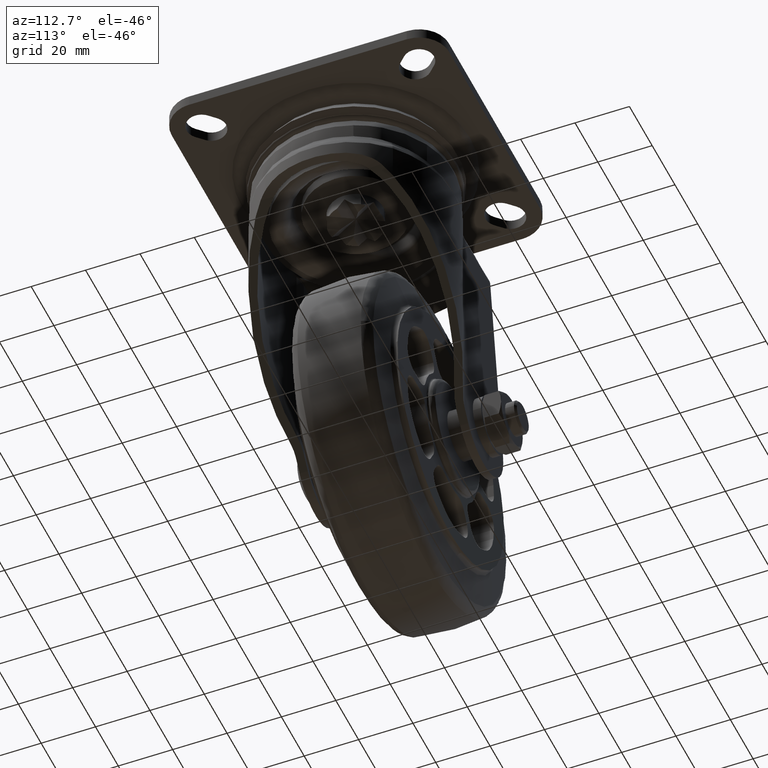
[diagram: clean part render]
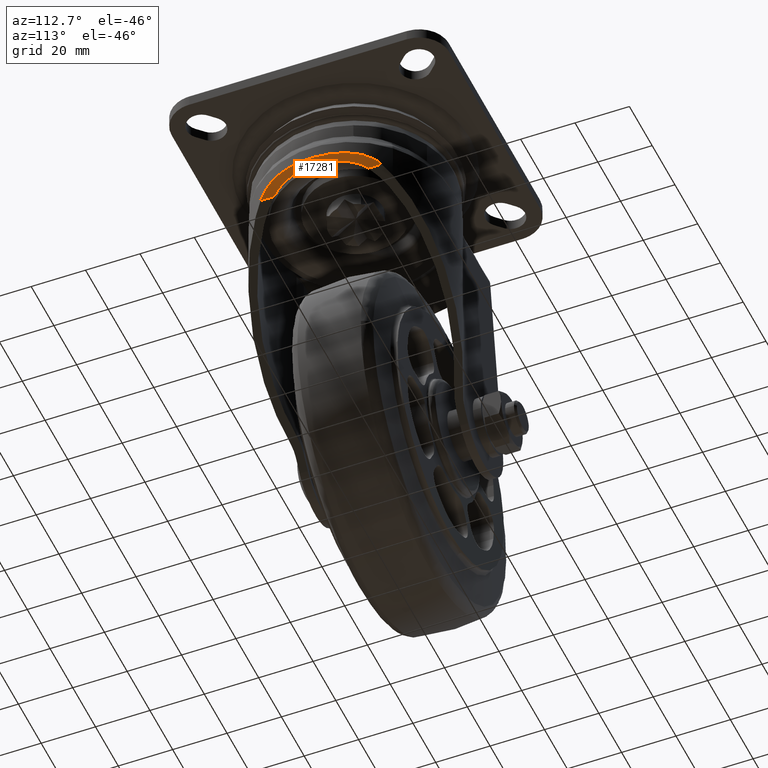
[diagram: same view with one face highlighted and labeled with its STEP entity id]
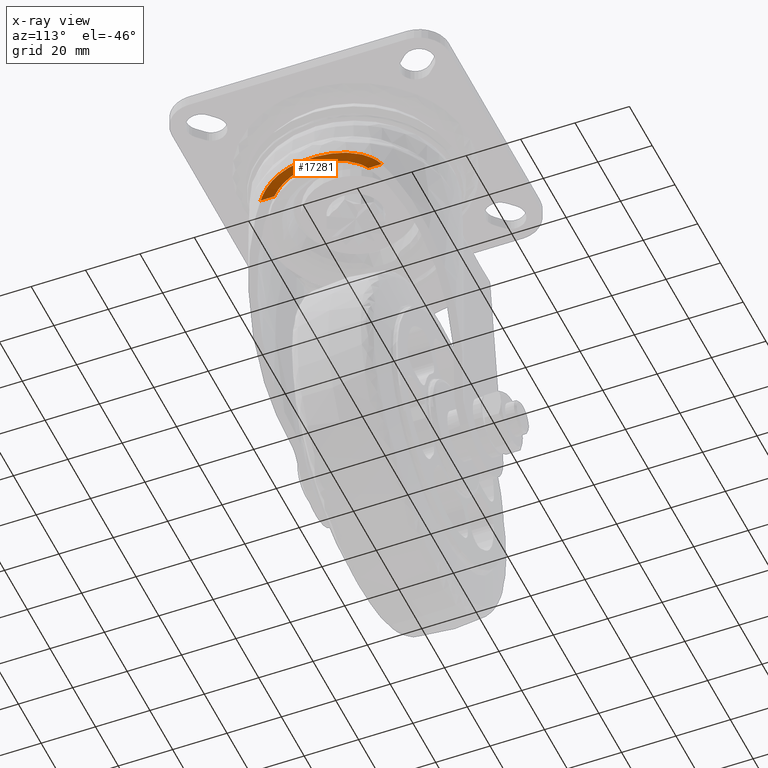
[diagram: x-ray of the same camera — body ghosted, the highlighted face saturated]
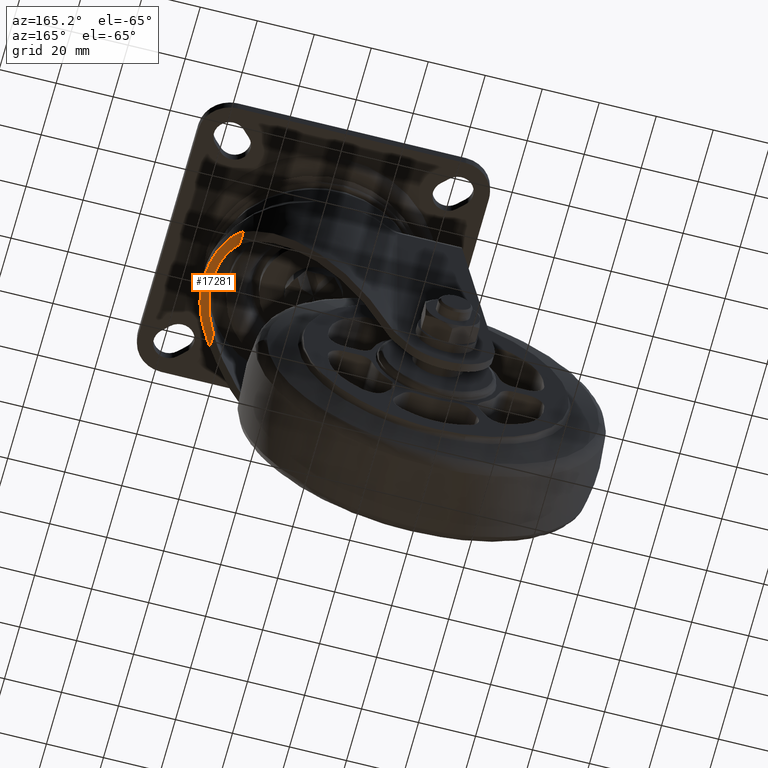
[diagram: same view with one face highlighted and labeled with its STEP entity id]
A machine part, auxiliary view. The second image highlights one B-rep face of the part: STEP entity #17281.
The next image is the same camera in x-ray: the body ghosted, the highlighted face saturated — about 0% of this face is hidden behind the body in this view.
A second angle (auxiliary view) of the same face is appended — the face is thin or edge-on in the first view.
In plain terms, the highlighted face is a freeform B-spline surface patch.
Its self-contained STEP definition (entity closure, byte-faithful):
#16852=CARTESIAN_POINT('',(68.505881367040004,-22.269559928102900,67.202841009678707));
#16853=VERTEX_POINT('',#16852);
#16867=CARTESIAN_POINT('',(68.505881367040004,22.269559928102900,67.202841009678707));
#16868=VERTEX_POINT('',#16867);
#16869=CARTESIAN_POINT('',(68.505881367040004,-22.269559928102900,67.202841009678707));
#16870=CARTESIAN_POINT('',(68.759907591997660,-21.968701775384250,67.559361252768284));
#16871=CARTESIAN_POINT('',(69.022994737515745,-21.646618713008941,67.879565664221360));
#16872=CARTESIAN_POINT('',(69.558347061791949,-20.964155908067479,68.461478641176555));
#16873=CARTESIAN_POINT('',(69.830664930562278,-20.603729541076270,68.723075291074579));
#16874=CARTESIAN_POINT('',(70.241145340688192,-20.035992961723409,69.078483249169466));
#16875=CARTESIAN_POINT('',(70.378319323730153,-19.842220870852699,69.190761648237569));
#16876=CARTESIAN_POINT('',(70.584074737821467,-19.544913189630218,69.350590183883185));
#16877=CARTESIAN_POINT('',(70.652735273973690,-19.444589650202879,69.402489324687195));
#16878=CARTESIAN_POINT('',(70.789618744726269,-19.242269850977269,69.503268530776637));
#16879=CARTESIAN_POINT('',(70.857718929269808,-19.140457868975609,69.552062035059407));
#16880=CARTESIAN_POINT('',(71.196398557594435,-18.628209705873200,69.788519551231914));
#16881=CARTESIAN_POINT('',(71.461486828841132,-18.208229862249610,69.953779633907587));
#16882=CARTESIAN_POINT('',(71.977542649097558,-17.349372079188001,70.246241713422364));
#16883=CARTESIAN_POINT('',(72.228519667358498,-16.910487432655511,70.373402084124535));
#16884=CARTESIAN_POINT('',(72.714479818530805,-16.014861246431050,70.596909611678228));
#16885=CARTESIAN_POINT('',(72.949468309442679,-15.558116312020640,70.693234602335963));
#16886=CARTESIAN_POINT('',(73.288770570868621,-14.860194671289429,70.818952128222833));
#16887=CARTESIAN_POINT('',(73.399676422495475,-14.625418353225820,70.857720064912940));
#16888=CARTESIAN_POINT('',(73.562606899497268,-14.270110682234190,70.911638586442805));
#16889=CARTESIAN_POINT('',(73.616365921129614,-14.151102724386730,70.928910982103616));
#16890=CARTESIAN_POINT('',(73.722396318904259,-13.912785418399601,70.962019852598928));
#16891=CARTESIAN_POINT('',(73.774707926439845,-13.793389934735430,70.977870087904805));
#16892=CARTESIAN_POINT('',(74.032754580479065,-13.195241466471970,71.053826034576446));
#16893=CARTESIAN_POINT('',(74.227958628718469,-12.712978522632550,71.104092068220695));
#16894=CARTESIAN_POINT('',(74.780050571092474,-11.255380081730690,71.230868219259008));
#16895=CARTESIAN_POINT('',(75.103467778110272,-10.269265623885660,71.283687340950280));
#16896=CARTESIAN_POINT('',(75.660890769120471,-8.269678246329145,71.354935153449603));
#16897=CARTESIAN_POINT('',(75.894906612761687,-7.256202225771725,71.373243355559794));
#16898=CARTESIAN_POINT('',(76.177524106177231,-5.715796852609624,71.389285373089791));
#16899=CARTESIAN_POINT('',(76.260314821005949,-5.198955985461343,71.392665951660618));
#16900=CARTESIAN_POINT('',(76.367067516137951,-4.418610614974097,71.396068239638936));
#16901=CARTESIAN_POINT('',(76.399662687451354,-4.158223056561011,71.396918095979373));
#16902=CARTESIAN_POINT('',(76.458801076856361,-3.637870716937992,71.398224172976825));
#16903=CARTESIAN_POINT('',(76.485365368373010,-3.377753287390345,71.398681022673841));
#16904=CARTESIAN_POINT('',(76.603286724890253,-2.077457126454874,71.400344815212165));
#16905=CARTESIAN_POINT('',(76.650036436839216,-1.038149287956250,71.400008999999983));
#16906=CARTESIAN_POINT('',(76.650021561389764,1.038643790761353,71.400008999999997));
#16907=CARTESIAN_POINT('',(76.603254834264490,2.076128985486941,71.400340102237891));
#16908=CARTESIAN_POINT('',(76.462476540009533,3.630977838746897,71.398360192521338));
#16909=CARTESIAN_POINT('',(76.403761302896697,4.149030571023375,71.397226084397516));
#16910=CARTESIAN_POINT('',(76.297778134492589,4.925759163387212,71.393865544425196));
#16911=CARTESIAN_POINT('',(76.259464179153966,5.184610250169921,71.392464663287839));
#16912=CARTESIAN_POINT('',(76.176811401549671,5.702194345887461,71.388891628531226));
#16913=CARTESIAN_POINT('',(76.132415460381708,5.961223318595666,71.386715996261898));
#16914=CARTESIAN_POINT('',(75.896128721642000,7.251251360483425,71.373347501204762));
#16915=CARTESIAN_POINT('',(75.661356749193274,8.267977138826083,71.354992690102662));
#16916=CARTESIAN_POINT('',(75.103143279249196,10.270459202594401,71.283647887406872));
#16917=CARTESIAN_POINT('',(74.779686514877639,11.256217628775300,71.230764142887807));
#16918=CARTESIAN_POINT('',(74.228914653703612,12.710516161024300,71.104321816728699));
#16919=CARTESIAN_POINT('',(74.034381993983146,13.191217113843891,71.054243858623764));
#16920=CARTESIAN_POINT('',(73.623479782603141,14.144183464024239,70.933416564990850));
#16921=CARTESIAN_POINT('',(73.407109363140336,14.616449653738441,70.862683339170871));
#16922=CARTESIAN_POINT('',(72.952530281923941,15.552142253014690,70.694482446632605));
#16923=CARTESIAN_POINT('',(72.716455702302639,16.011149509256139,70.597783347702659));
#16924=CARTESIAN_POINT('',(72.228693535089945,16.910236862012919,70.373516928694528));
#16925=CARTESIAN_POINT('',(71.976964256279317,17.350394982256759,70.245957120349033));
#16926=CARTESIAN_POINT('',(71.459860398939767,18.210876128499351,69.952814512782339));
#16927=CARTESIAN_POINT('',(71.194476267192101,18.631205868550840,69.787270708503442));
#16928=CARTESIAN_POINT('',(70.855820047385421,19.143307328640411,69.550712560132212));
#16929=CARTESIAN_POINT('',(70.787744243197011,19.245060762482840,69.501912086640502));
#16930=CARTESIAN_POINT('',(70.650951780017337,19.447204866485620,69.401151962342610));
#16931=CARTESIAN_POINT('',(70.582351078707774,19.547421561112369,69.349274211484797));
#16932=CARTESIAN_POINT('',(70.376759235006645,19.844438957695122,69.189503045947845));
#16933=CARTESIAN_POINT('',(70.239696063223349,20.038023663175871,69.077270534632191));
#16934=CARTESIAN_POINT('',(69.829551280801184,20.605217043083560,68.722026195266565));
#16935=CARTESIAN_POINT('',(69.557461565971650,20.965306446177419,68.460572930760605));
#16936=CARTESIAN_POINT('',(69.022560588703129,21.647150393543210,67.879036817602397));
#16937=CARTESIAN_POINT('',(68.759696829755470,21.968951393465289,67.559065452577471));
#16938=CARTESIAN_POINT('',(68.505881367039905,22.269559928102851,67.202841009678608));
#16939=B_SPLINE_CURVE_WITH_KNOTS('',3,(#16869,#16870,#16871,#16872,#16873,#16874,#16875,#16876,#16877,#16878,#16879,#16880,#16881,#16882,#16883,#16884,#16885,#16886,#16887,#16888,#16889,#16890,#16891,#16892,#16893,#16894,#16895,#16896,#16897,#16898,#16899,#16900,#16901,#16902,#16903,#16904,#16905,#16906,#16907,#16908,#16909,#16910,#16911,#16912,#16913,#16914,#16915,#16916,#16917,#16918,#16919,#16920,#16921,#16922,#16923,#16924,#16925,#16926,#16927,#16928,#16929,#16930,#16931,#16932,#16933,#16934,#16935,#16936,#16937,#16938),.UNSPECIFIED.,.F.,.U.,(4,2,2,2,2,2,2,2,2,2,2,2,2,2,2,2,2,2,2,2,2,2,2,2,2,2,2,2,2,2,2,2,2,2,4),(0.0,0.031250000000000,0.062499999999999,0.078124999999999,0.085937499999999,0.093749999999999,0.124999999999999,0.156249999999998,0.187499999999998,0.203124999999998,0.210937499999998,0.218749999999998,0.249999999999998,0.312499999999999,0.374999999999999,0.406249999999999,0.421874999999999,0.437499999999999,0.499999999999999,0.562499999999999,0.593749999999999,0.609374999999999,0.624999999999999,0.687499999999999,0.749999999999999,0.781250000000000,0.812500000000000,0.843750000000000,0.875000000000000,0.906250000000000,0.914062500000000,0.921875000000000,0.937500000000000,0.968750000000000,1.0),.UNSPECIFIED.);
#16940=EDGE_CURVE('',#16853,#16868,#16939,.T.);
#17032=CARTESIAN_POINT('',(68.505881367040004,17.257390885481300,67.202841009678707));
#17033=VERTEX_POINT('',#17032);
#17034=CARTESIAN_POINT('',(68.505881367040004,22.269559928102900,67.202841009678707));
#17035=CARTESIAN_POINT('',(68.505881367040004,17.257390885481300,67.202841009678707));
#17036=QUASI_UNIFORM_CURVE('',1,(#17034,#17035),.UNSPECIFIED.,.F.,.U.);
#17037=EDGE_CURVE('',#16868,#17033,#17036,.T.);
#17083=CARTESIAN_POINT('',(68.505881367040004,-17.257390885481300,67.202841009678707));
#17084=VERTEX_POINT('',#17083);
#17098=CARTESIAN_POINT('',(68.505881367040004,-17.257390885481300,67.202841009678707));
#17099=CARTESIAN_POINT('',(68.505881367040004,-22.269559928102900,67.202841009678707));
#17100=QUASI_UNIFORM_CURVE('',1,(#17098,#17099),.UNSPECIFIED.,.F.,.U.);
#17101=EDGE_CURVE('',#17084,#16853,#17100,.T.);
#17199=CARTESIAN_POINT('',(68.356771729472541,23.383037924508042,66.987663592478270));
#17200=CARTESIAN_POINT('',(68.356771729472541,-23.410874874418170,66.987663592478270));
#17201=CARTESIAN_POINT('',(71.495317720847183,23.383037924508049,71.645927436648364));
#17202=CARTESIAN_POINT('',(71.495317720847183,-23.410874874418173,71.645927436648364));
#17203=CARTESIAN_POINT('',(77.106394636015864,23.383037924508042,71.389590092631636));
#17204=CARTESIAN_POINT('',(77.106394636015864,-23.410874874418166,71.389590092631636));
#17212=(BOUNDED_SURFACE()B_SPLINE_SURFACE(1,2,((#17199,#17201,#17203),(#17200,#17202,#17204)),.UNSPECIFIED.,.F.,.F.,.U.)B_SPLINE_SURFACE_WITH_KNOTS((2,2),(3,3),(0.0,46.793912798926222),(0.0,10.464934683610281),.UNSPECIFIED.)GEOMETRIC_REPRESENTATION_ITEM()RATIONAL_B_SPLINE_SURFACE(((1.0,0.871170137753363,0.998381349224757),(1.0,0.871170137753363,0.998381349224757)))REPRESENTATION_ITEM('')SURFACE());
#17213=ORIENTED_EDGE('',*,*,#17101,.F.);
#17214=CARTESIAN_POINT('',(68.505881367040004,-17.257390885481300,67.202841009678707));
#17215=CARTESIAN_POINT('',(68.680257683351371,-16.990884739959519,67.447574350461736));
#17216=CARTESIAN_POINT('',(68.856090866135546,-16.713308138297389,67.671208641829551));
#17217=CARTESIAN_POINT('',(69.207119749455956,-16.138423236374098,68.084058556246276));
#17218=CARTESIAN_POINT('',(69.382330401015054,-15.841099547028120,68.273232109139968));
#17219=CARTESIAN_POINT('',(69.729439612889166,-15.228308868793290,68.622618041663003));
#17220=CARTESIAN_POINT('',(69.901346021704342,-14.912834298794710,68.782809220056691));
#17221=CARTESIAN_POINT('',(70.239673758559050,-14.264887863179620,69.078407707369735));
#17222=CARTESIAN_POINT('',(70.406099645599284,-13.932411973411551,69.213803375123049));
#17223=CARTESIAN_POINT('',(70.650240628681331,-13.421598385044250,69.400824494638798));
#17224=CARTESIAN_POINT('',(70.730852762595120,-13.248983319214910,69.460583443172609));
#17225=CARTESIAN_POINT('',(70.889156316033393,-12.901763394553591,69.574472505485502));
#17226=CARTESIAN_POINT('',(70.966858802620024,-12.727155531270430,69.628620646356126));
#17227=CARTESIAN_POINT('',(71.195516043634498,-12.200447894112269,69.783455837941062));
#17228=CARTESIAN_POINT('',(71.342018055468756,-11.845467775765799,69.876558310231616));
#17229=CARTESIAN_POINT('',(71.763015631707503,-10.769722920872381,70.130677583925035));
#17230=CARTESIAN_POINT('',(72.018989673410104,-10.038192696977941,70.266741537415825));
#17231=CARTESIAN_POINT('',(72.478504795852288,-8.549032061868077,70.491975616123298));
#17232=CARTESIAN_POINT('',(72.682067679308176,-7.791390502535560,70.581045856467426));
#17233=CARTESIAN_POINT('',(72.901996495044330,-6.828934519933358,70.671174623422999));
#17234=CARTESIAN_POINT('',(72.944289465126943,-6.635507092185624,70.688140454609780));
#17235=CARTESIAN_POINT('',(73.025217102592833,-6.247885153184748,70.720021345852771));
#17236=CARTESIAN_POINT('',(73.063799628990182,-6.053957876846730,70.734916671320306));
#17237=CARTESIAN_POINT('',(73.173945567235634,-5.471834349296601,70.776736217037651));
#17238=CARTESIAN_POINT('',(73.239909275137549,-5.083296690237759,70.800804182916366));
#17239=CARTESIAN_POINT('',(73.415666300620614,-3.916364419890277,70.863325773997516));
#17240=CARTESIAN_POINT('',(73.503355163020203,-3.136654509623505,70.892228636071778));
#17241=CARTESIAN_POINT('',(73.620460867372088,-1.573868606441600,70.930250696070729));
#17242=CARTESIAN_POINT('',(73.649877990770761,-0.790792320495478,70.939353523953869));
#17243=CARTESIAN_POINT('',(73.650178851030375,0.778708346577354,70.939448140148372));
#17244=CARTESIAN_POINT('',(73.621065563267138,1.565132460526854,70.930446012346565));
#17245=CARTESIAN_POINT('',(73.547303816444483,2.550321434775547,70.906498205118808));
#17246=CARTESIAN_POINT('',(73.530680364870221,2.747467492255785,70.901063895289440));
#17247=CARTESIAN_POINT('',(73.493660782676784,3.141979126144138,70.888829775389382));
#17248=CARTESIAN_POINT('',(73.473237038326246,3.339576861158449,70.882020612057417));
#17249=CARTESIAN_POINT('',(73.406494512926457,3.930650759066127,70.859485177196703));
#17250=CARTESIAN_POINT('',(73.354734857820659,4.322360053758864,70.841668866524188));
#17251=CARTESIAN_POINT('',(73.178135864302305,5.490452818201928,70.778792296822289));
#17252=CARTESIAN_POINT('',(73.031993126518827,6.259823973321850,70.724438839517219));
#17253=CARTESIAN_POINT('',(72.684899127943083,7.779216147406015,70.582215734309443));
#17254=CARTESIAN_POINT('',(72.483936060814486,8.529240574870501,70.494394468016182));
#17255=CARTESIAN_POINT('',(72.028794632323496,10.008535802935370,70.271782798840988));
#17256=CARTESIAN_POINT('',(71.774598955721615,10.737818174229830,70.137111579240440));
#17257=CARTESIAN_POINT('',(71.354600990219666,11.814394893917640,69.884414523808914));
#17258=CARTESIAN_POINT('',(71.208152437880372,12.170354174749489,69.791668534322213));
#17259=CARTESIAN_POINT('',(70.979002917078986,12.699617592352499,69.636996054206264));
#17260=CARTESIAN_POINT('',(70.900884949855964,12.875595390551190,69.582725099441646));
#17261=CARTESIAN_POINT('',(70.742481226181951,13.223859589181870,69.469109282771640));
#17262=CARTESIAN_POINT('',(70.662196042771598,13.396166377555099,69.409772633358187));
#17263=CARTESIAN_POINT('',(70.418377880036701,13.907471474692930,69.223585692460517));
#17264=CARTESIAN_POINT('',(70.251873209239761,14.240862463445280,69.088584247676067));
#17265=CARTESIAN_POINT('',(69.912662519179349,14.891778962373481,68.793146342504187));
#17266=CARTESIAN_POINT('',(69.739951551060599,15.209308848186350,68.632724054456602));
#17267=CARTESIAN_POINT('',(69.390386400979935,15.827296646699180,68.281791236005262));
#17268=CARTESIAN_POINT('',(69.213523504483604,16.127762952786949,68.091307054462746));
#17269=CARTESIAN_POINT('',(68.947072623799698,16.564389338895129,67.778350004993442));
#17270=CARTESIAN_POINT('',(68.857936208273955,16.707782718422511,67.669295110318103));
#17271=CARTESIAN_POINT('',(68.680974897403900,16.987585140382681,67.442759625153499));
#17272=CARTESIAN_POINT('',(68.593029405555427,17.124199129135839,67.325151373033933));
#17273=CARTESIAN_POINT('',(68.505881367039905,17.257390885481250,67.202841009678707));
#17274=B_SPLINE_CURVE_WITH_KNOTS('',3,(#17214,#17215,#17216,#17217,#17218,#17219,#17220,#17221,#17222,#17223,#17224,#17225,#17226,#17227,#17228,#17229,#17230,#17231,#17232,#17233,#17234,#17235,#17236,#17237,#17238,#17239,#17240,#17241,#17242,#17243,#17244,#17245,#17246,#17247,#17248,#17249,#17250,#17251,#17252,#17253,#17254,#17255,#17256,#17257,#17258,#17259,#17260,#17261,#17262,#17263,#17264,#17265,#17266,#17267,#17268,#17269,#17270,#17271,#17272,#17273),.UNSPECIFIED.,.F.,.U.,(4,2,2,2,2,2,2,2,2,2,2,2,2,2,2,2,2,2,2,2,2,2,2,2,2,2,2,2,2,4),(0.0,0.031250000000000,0.062500000000000,0.093750000000001,0.125000000000001,0.140625000000001,0.156250000000001,0.187500000000001,0.250000000000002,0.312500000000002,0.328125000000002,0.343750000000002,0.375000000000002,0.437500000000002,0.500000000000001,0.562500000000001,0.578125000000001,0.593750000000001,0.625000000000000,0.687500000000000,0.749999999999999,0.812499999999998,0.843749999999998,0.859374999999998,0.874999999999998,0.906249999999999,0.937499999999999,0.968749999999999,0.984375000000000,1.0),.UNSPECIFIED.);
#17275=EDGE_CURVE('',#17084,#17033,#17274,.T.);
#17276=ORIENTED_EDGE('',*,*,#17275,.T.);
#17277=ORIENTED_EDGE('',*,*,#17037,.F.);
#17278=ORIENTED_EDGE('',*,*,#16940,.F.);
#17279=EDGE_LOOP('',(#17213,#17276,#17277,#17278));
#17280=FACE_OUTER_BOUND('',#17279,.T.);
#17281=ADVANCED_FACE('',(#17280),#17212,.F.);